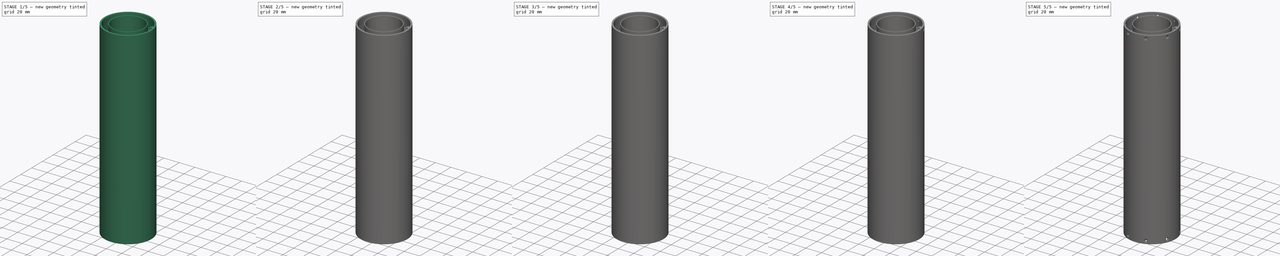
[diagram: build sequence overview — one tinted view per stage of 5, left to right]
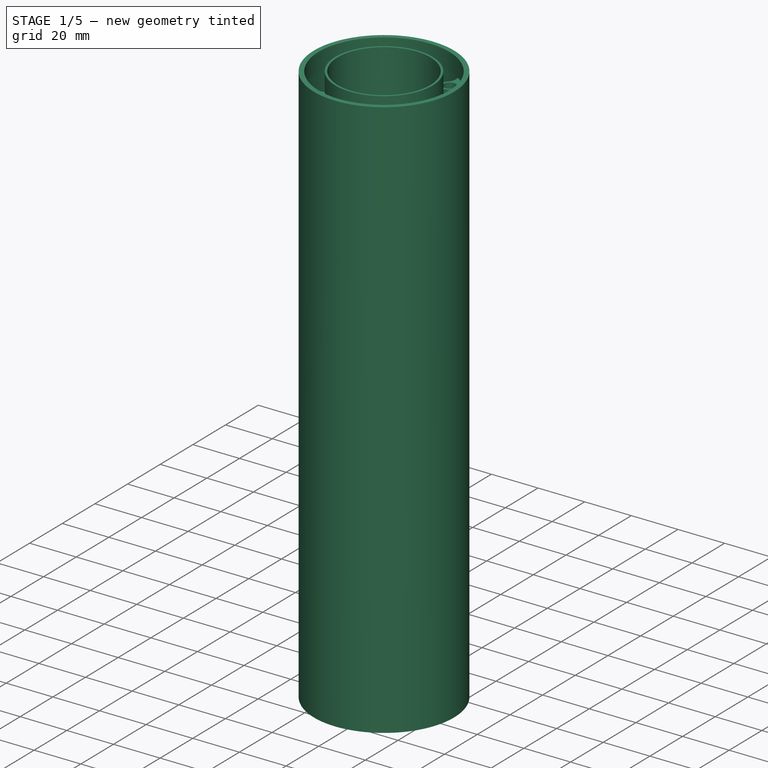
[diagram: stage 1 of 5 — iso view after this stage's code; geometry added in this stage tinted green]
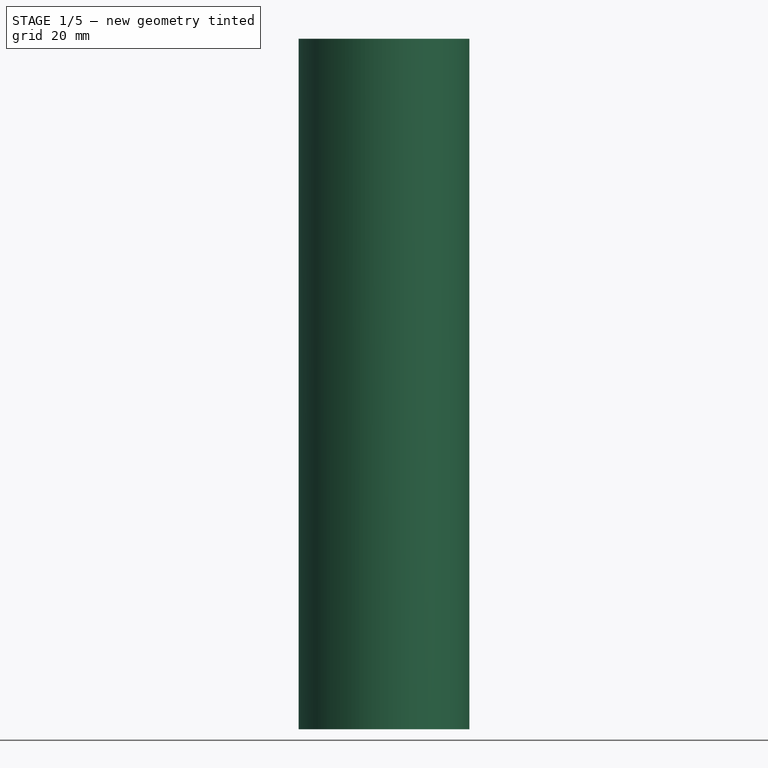
[diagram: stage 1 of 5 — front view after this stage's code; geometry added in this stage tinted green]
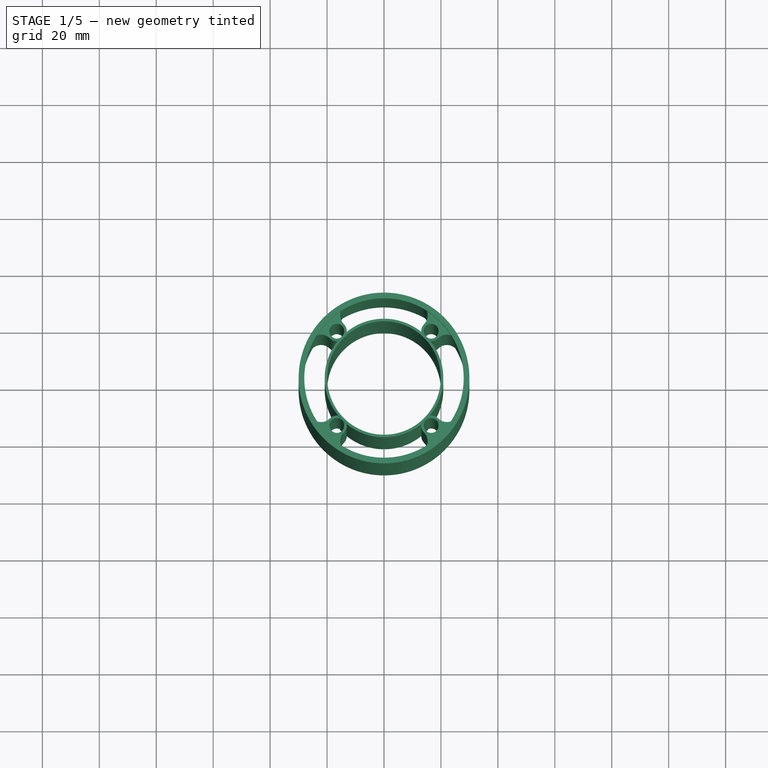
[diagram: stage 1 of 5 — top view after this stage's code; geometry added in this stage tinted green]
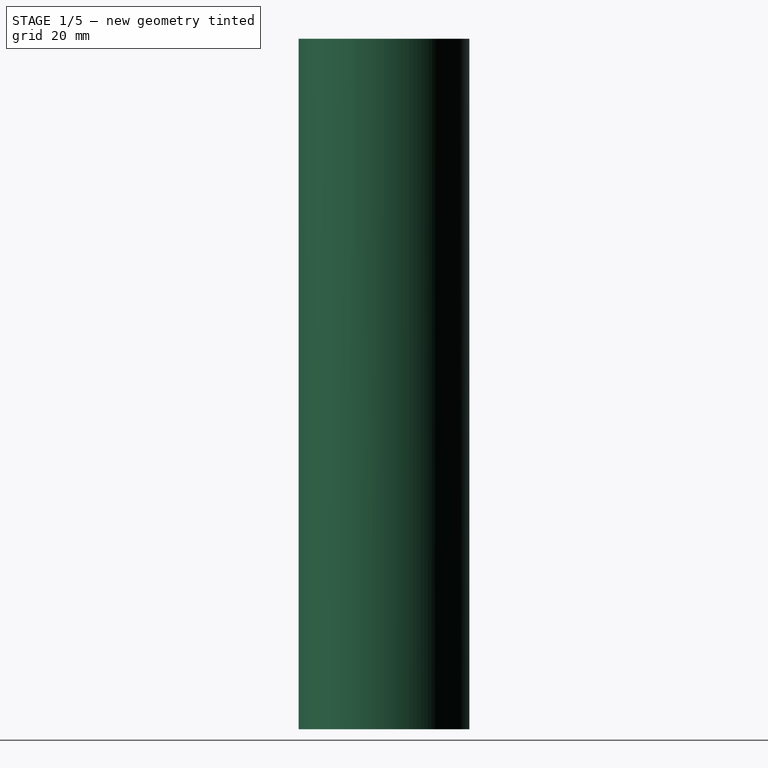
[diagram: stage 1 of 5 — right view after this stage's code; geometry added in this stage tinted green]
FCSTD DOCUMENT  (FreeCAD 1.0R39319 (Git))
Label: parachute_fuselage_seat
License: All rights reserved
objects: Sketcher::SketchObject×16, PartDesign::Pad×8, PartDesign::Pocket×6, PartDesign::PolarPattern×5, PartDesign::Plane×5, PartDesign::Chamfer×3, PartDesign::Fillet×2, PartDesign::Body×1
note: 105 computed .brp shape members not serialized (recipe doc carries the construction recipe); baked Part::Feature solids carry a one-line shape summary decoded from their .brp

FEATURE [Sketcher::SketchObject] Sketch
  ArcFitTolerance = 1e-06
  AttachmentSupport = -> [XY_Plane]
  FullyConstrained = true
  MakeInternals = false
  MapMode = 5
  sketch-geometry (2):
    g0: Circle CenterX=0 CenterY=0 CenterZ=0 NormalX=0 NormalY=0 NormalZ=1 AngleXU=0 Radius=30
    g1: Circle CenterX=0 CenterY=0 CenterZ=0 NormalX=0 NormalY=0 NormalZ=1 AngleXU=0 Radius=29
  constraints (4):
    c: Diameter(g0) = 60
    c: Coincident(g0,g-1)
    c: Diameter(g1) = 58
    c: Coincident(g1,g0)
FEATURE [PartDesign::Pad] Pad  label="fusoliera"
  Direction = (0,0,1)
  Length = 235
  Length2 = 10
  Profile = -> Sketch
  ReferenceAxis = -> Sketch [N_Axis]
  Refine = true
  Suppressed = false
  Type = 0
FEATURE [Sketcher::SketchObject] Sketch001
  ArcFitTolerance = 1e-06
  AttachmentSupport = -> [Pad]
  ExternalGeometry = -> [Pad]
  FullyConstrained = false
  MakeInternals = false
  MapMode = 5
  Placement = pos=(0,0,235) rot=(0,0,1;0rad)
  sketch-geometry (12):
    g0: LineSegment [constr] StartX=0 StartY=0 StartZ=0 EndX=16.566 EndY=16.566 EndZ=0
    g1: Circle CenterX=16.566 CenterY=16.566 CenterZ=0 NormalX=0 NormalY=0 NormalZ=1 AngleXU=0 Radius=2.6
    g2: ArcOfCircle CenterX=16.566 CenterY=16.566 CenterZ=0 NormalX=0 NormalY=0 NormalZ=1 AngleXU=0 Radius=3.5 StartAngle=2.35619 EndAngle=5.49779
    g3: ArcOfCircle CenterX=11.0464 CenterY=22.0856 CenterZ=0 NormalX=0 NormalY=0 NormalZ=1 AngleXU=0 Radius=4.3059 StartAngle=5.49779 EndAngle=7.3902
    g4: ArcOfCircle CenterX=22.0856 CenterY=11.0464 CenterZ=0 NormalX=0 NormalY=0 NormalZ=1 AngleXU=0 Radius=4.3059 StartAngle=0.463778 EndAngle=2.35619
    g5: LineSegment [constr] StartX=17.0518 StartY=12.102 StartZ=0 EndX=22.8488 EndY=17.899 EndZ=0
    g6: LineSegment [constr] StartX=11.605 StartY=16.5548 StartZ=0 EndX=18.5935 EndY=23.5432 EndZ=0
    g7: LineSegment StartX=12.9726 StartY=25.9367 StartZ=0 EndX=13.2467 EndY=26.4349 EndZ=0
    g8: LineSegment StartX=13.2467 StartY=26.4349 StartZ=0 EndX=19.3371 EndY=22.2749 EndZ=0
    g9: LineSegment StartX=19.3371 StartY=22.2749 StartZ=0 EndX=22.1303 EndY=19.4817 EndZ=0
    g10: LineSegment StartX=22.1303 StartY=19.4817 StartZ=0 EndX=26.2762 EndY=13.5853 EndZ=0
    g11: LineSegment StartX=26.2762 StartY=13.5853 StartZ=0 EndX=25.9367 EndY=12.9726 EndZ=0
  constraints (24):
    c: Distance(g0) = 23.4279
    c: Angle(g-1,g0) = 0.785398
    c: Coincident(g0,g-1)
    c: Diameter(g1) = 5.2
    c: Coincident(g1,g0)
    c: Diameter(g2) = 7
    c: Coincident(g2,g0)
    c: PointOnObject(g6,g-4)
    c: Parallel(g0,g6)
    c: Parallel(g5,g0)
    c: Tangent(g5,g2)
    c: Tangent(g3,g6)
    c: Tangent(g4,g5)
    c: Tangent(g3,g-3) = -1.5708
    c: Tangent(g3,g2) = 1.5708
    c: Tangent(g4,g-3) = -1.5708
    c: Tangent(g2,g4) = 1.5708
    c: Tangent(g2,g6) = 1.5708
    c: Coincident(g3,g7)
    c: Coincident(g7,g8)
    c: Coincident(g8,g9)
    c: Coincident(g9,g10)
    c: Coincident(g10,g11)
    c: Coincident(g11,g4)
FEATURE [PartDesign::Pad] Pad001  label="sede_tondi"
  BaseFeature = -> Pad
  Direction = (0,0,1)
  Length = 209
  Length2 = 10
  Profile = -> Sketch001
  ReferenceAxis = -> Sketch001 [N_Axis]
  Refine = true
  Reversed = true
  Suppressed = false
  Type = 0
FEATURE [PartDesign::PolarPattern] PolarPattern
  Angle = 360
  Axis = -> Z_Axis
  BaseFeature = -> Pad001
  Mode = 0
  Occurrences = 4
  Offset = 120
  Refine = true
  Suppressed = false
  TransformMode = 1
FEATURE [Sketcher::SketchObject] Sketch002
  ArcFitTolerance = 1e-06
  AttachmentSupport = -> [PolarPattern]
  ExternalGeometry = -> [PolarPattern]
  FullyConstrained = true
  MakeInternals = false
  MapMode = 5
  Placement = pos=(0,0,0) rot=(1,0,0;3.14159rad)
  sketch-geometry (2):
    g0: Circle CenterX=0 CenterY=0 CenterZ=0 NormalX=0 NormalY=0 NormalZ=1 AngleXU=0 Radius=20.8279
    g1: Circle CenterX=0 CenterY=0 CenterZ=0 NormalX=0 NormalY=0 NormalZ=1 AngleXU=0 Radius=19.9279
  constraints (4):
    c: Coincident(g0,g-1)
    c: Tangent(g0,g-8)
    c: Coincident(g1,g0)
    c: Tangent(g1,g-4)
FEATURE [PartDesign::Pad] Pad002  label="tubo_interno_paracadute"
  BaseFeature = -> PolarPattern
  Direction = (0,0,-1)
  Length = 242.5
  Length2 = 10
  Profile = -> Sketch002
  ReferenceAxis = -> Sketch002 [N_Axis]
  Refine = true
  Reversed = true
  Suppressed = false
  Type = 0
FEATURE [Sketcher::SketchObject] Sketch003
  ArcFitTolerance = 1e-06
  AttachmentSupport = -> [Pad002]
  ExternalGeometry = -> [Pad002]
  FullyConstrained = true
  MakeInternals = false
  MapMode = 5
  Placement = pos=(0,0,235) rot=(0,0,1;0rad)
  sketch-geometry (2):
    g0: Circle CenterX=0 CenterY=0 CenterZ=0 NormalX=0 NormalY=0 NormalZ=1 AngleXU=0 Radius=30
    g1: Circle CenterX=0 CenterY=0 CenterZ=0 NormalX=0 NormalY=0 NormalZ=1 AngleXU=0 Radius=28
  constraints (4):
    c: Diameter(g0) = 60
    c: Coincident(g0,g-1)
    c: Diameter(g1) = 56
    c: Coincident(g1,g0)
FEATURE [PartDesign::Pad] Pad003  label="accopiamento_inf"
  BaseFeature = -> Pad002
  Direction = (0,0,1)
  Length = 7.5
  Length2 = 10
  Profile = -> Sketch003
  ReferenceAxis = -> Sketch003 [N_Axis]
  Refine = true
  Suppressed = false
  Type = 0
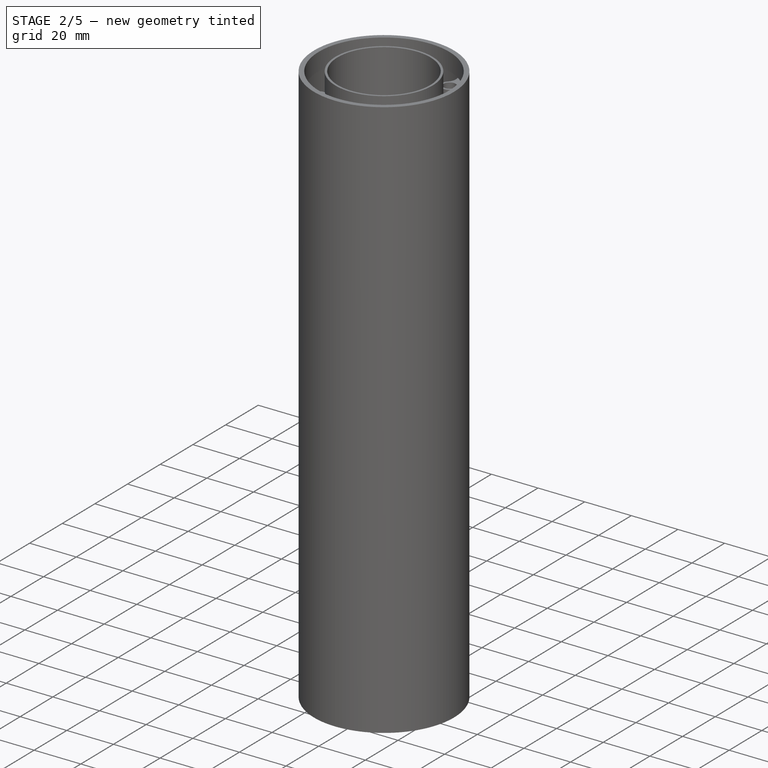
[diagram: stage 2 of 5 — iso view after this stage's code; geometry added in this stage tinted green]
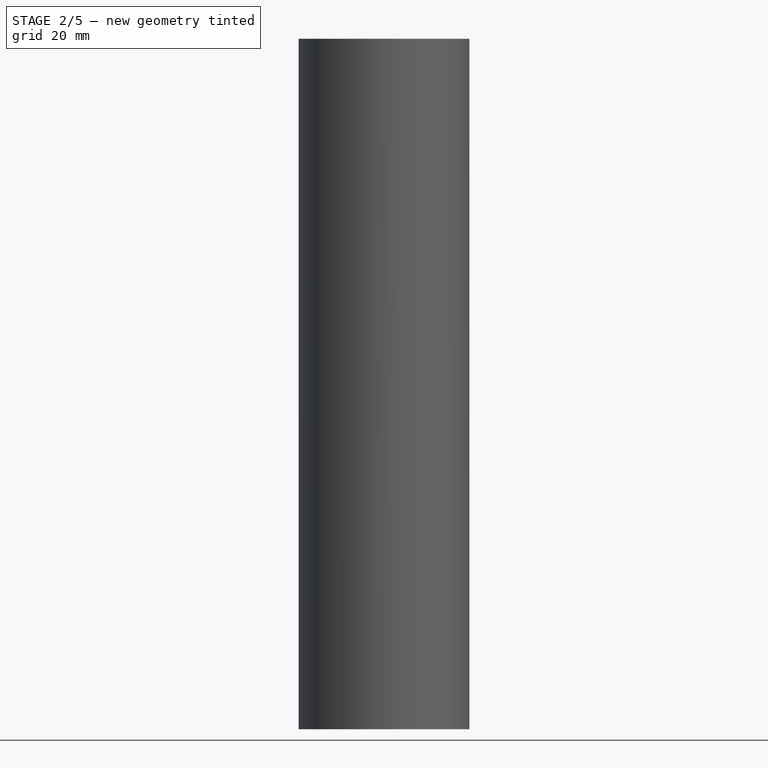
[diagram: stage 2 of 5 — front view after this stage's code; geometry added in this stage tinted green]
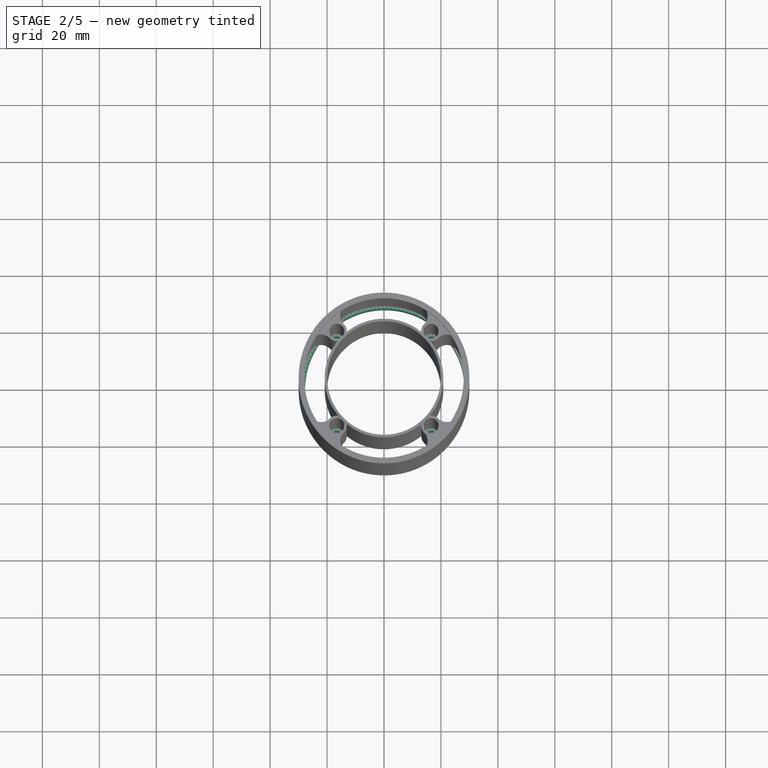
[diagram: stage 2 of 5 — top view after this stage's code; geometry added in this stage tinted green]
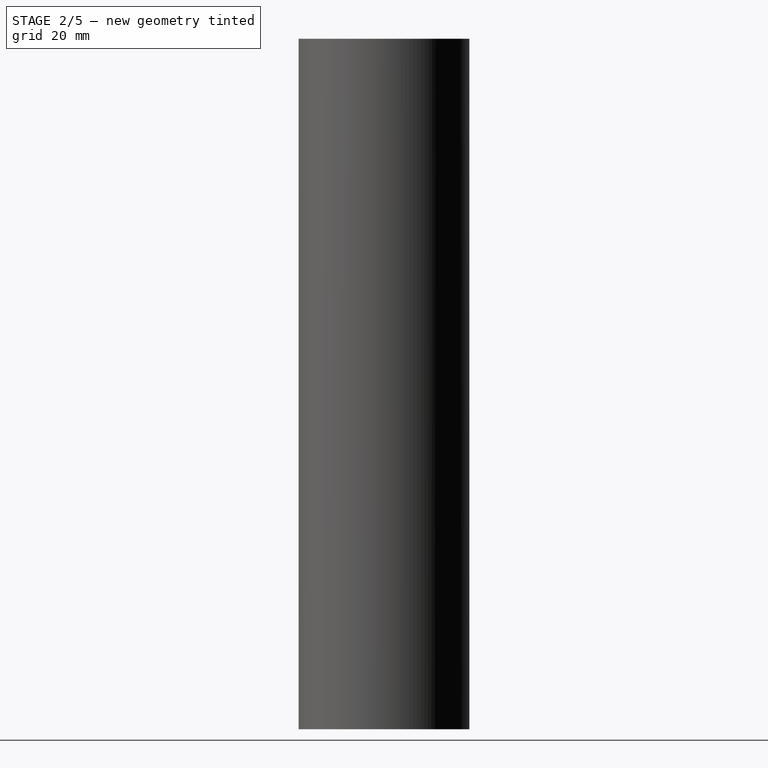
[diagram: stage 2 of 5 — right view after this stage's code; geometry added in this stage tinted green]
FEATURE [Sketcher::SketchObject] Sketch004
  ArcFitTolerance = 1e-06
  AttachmentSupport = -> [Pad003]
  ExternalGeometry = -> [Pad003]
  FullyConstrained = true
  MakeInternals = false
  MapMode = 5
  Placement = pos=(0,0,26) rot=(1,0,0;3.14159rad)
  sketch-geometry (1):
    g0: Circle CenterX=-16.566 CenterY=16.566 CenterZ=0 NormalX=0 NormalY=0 NormalZ=1 AngleXU=0 Radius=2.6
  constraints (2):
    c: Coincident(g0,g-3)
    c: Equal(g0,g-3)
FEATURE [PartDesign::Pad] Pad004  label="chiusura_tondi_1"
  BaseFeature = -> Pad003
  Direction = (0,0,-1)
  Length = 5
  Length2 = 10
  Profile = -> Sketch004
  ReferenceAxis = -> Sketch004 [N_Axis]
  Refine = true
  Reversed = true
  Suppressed = false
  Type = 0
FEATURE [Sketcher::SketchObject] Sketch005
  ArcFitTolerance = 1e-06
  AttachmentSupport = -> [Pad004]
  ExternalGeometry = -> [Pad004]
  FullyConstrained = true
  MakeInternals = false
  MapMode = 5
  Placement = pos=(0,0,31) rot=(0,0,1;0rad)
  sketch-geometry (1):
    g0: Circle CenterX=-16.566 CenterY=-16.566 CenterZ=0 NormalX=0 NormalY=0 NormalZ=1 AngleXU=0 Radius=1.45
  constraints (2):
    c: Diameter(g0) = 2.9
    c: Coincident(g0,g-3)
FEATURE [PartDesign::Pad] Pad005  label="chiusura_tondi_2"
  BaseFeature = -> Pad004
  Direction = (0,0,1)
  Length = 10
  Length2 = 10
  Profile = -> Sketch005
  ReferenceAxis = -> Sketch005 [N_Axis]
  Refine = true
  Suppressed = false
  Type = 0
FEATURE [PartDesign::Fillet] Fillet
  Base = -> Pad005 [Edge147]
  BaseFeature = -> Pad005
  Radius = 1
  Refine = true
  SupportTransform = false
  Suppressed = false
  UseAllEdges = false
FEATURE [PartDesign::PolarPattern] PolarPattern001
  Angle = 360
  Axis = -> Z_Axis
  BaseFeature = -> Fillet
  Mode = 0
  Occurrences = 4
  Offset = 120
  Originals = -> [Pad004,Pad005,Fillet]
  Refine = true
  Suppressed = false
  TransformMode = 0
FEATURE [Sketcher::SketchObject] Sketch006
  ArcFitTolerance = 1e-06
  AttachmentSupport = -> [PolarPattern001]
  ExternalGeometry = -> [PolarPattern001]
  FullyConstrained = false
  MakeInternals = false
  MapMode = 5
  Placement = pos=(-6.45e-14,7.02e-14,26) rot=(1,0,0;3.14159rad)
  sketch-geometry (2):
    g0: Circle CenterX=0 CenterY=0 CenterZ=0 NormalX=0 NormalY=0 NormalZ=1 AngleXU=0 Radius=29
    g1: Circle CenterX=0.288227 CenterY=0 CenterZ=0 NormalX=0 NormalY=0 NormalZ=1 AngleXU=0 Radius=28
  constraints (4):
    c: Coincident(g0,g-1)
    c: Tangent(g0,g-3)
    c: Diameter(g1) = 56
    c: PointOnObject(g1,g-1)
FEATURE [PartDesign::Pad] Pad006
  BaseFeature = -> PolarPattern001
  Direction = (2.5e-15,-2.7e-15,-1)
  Length = 26
  Length2 = 10
  Profile = -> Sketch006
  ReferenceAxis = -> Sketch006 [N_Axis]
  Refine = true
  Suppressed = false
  Type = 0
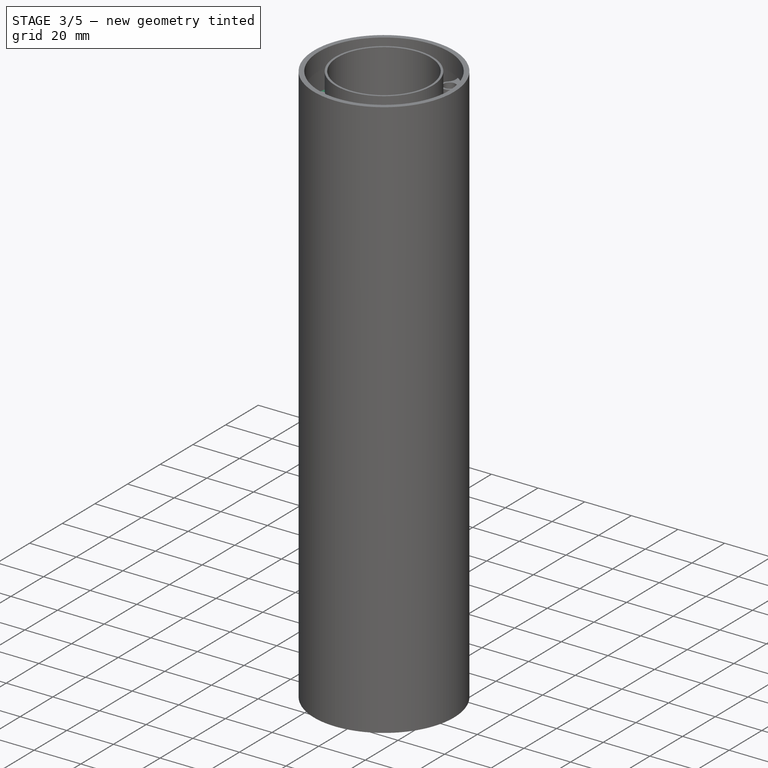
[diagram: stage 3 of 5 — iso view after this stage's code; geometry added in this stage tinted green]
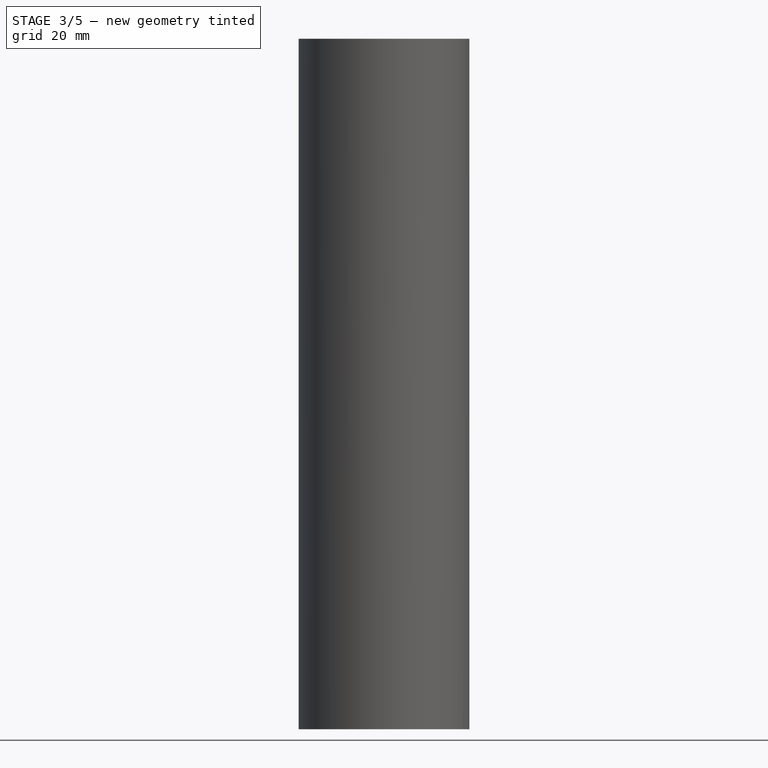
[diagram: stage 3 of 5 — front view after this stage's code; geometry added in this stage tinted green]
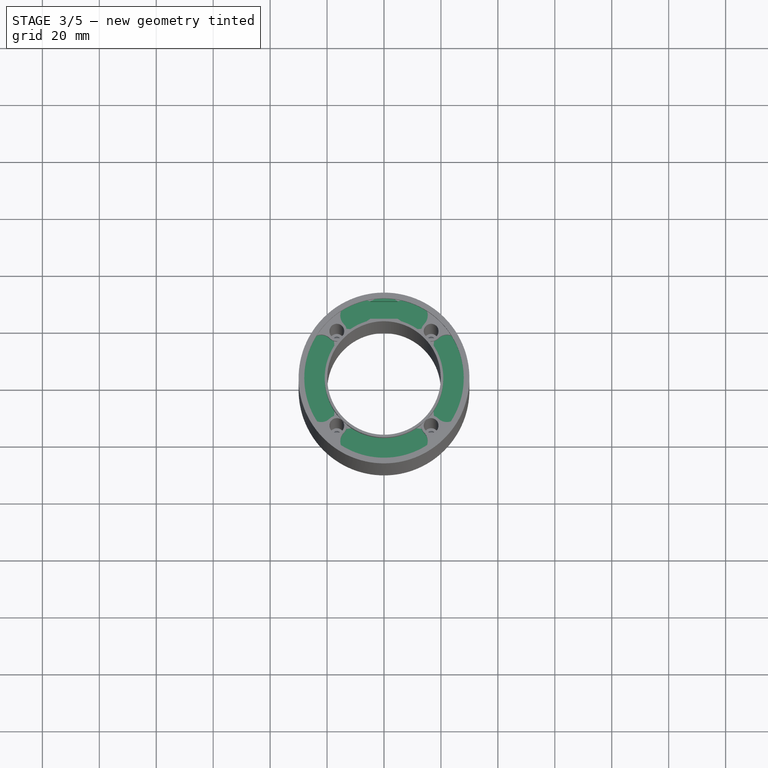
[diagram: stage 3 of 5 — top view after this stage's code; geometry added in this stage tinted green]
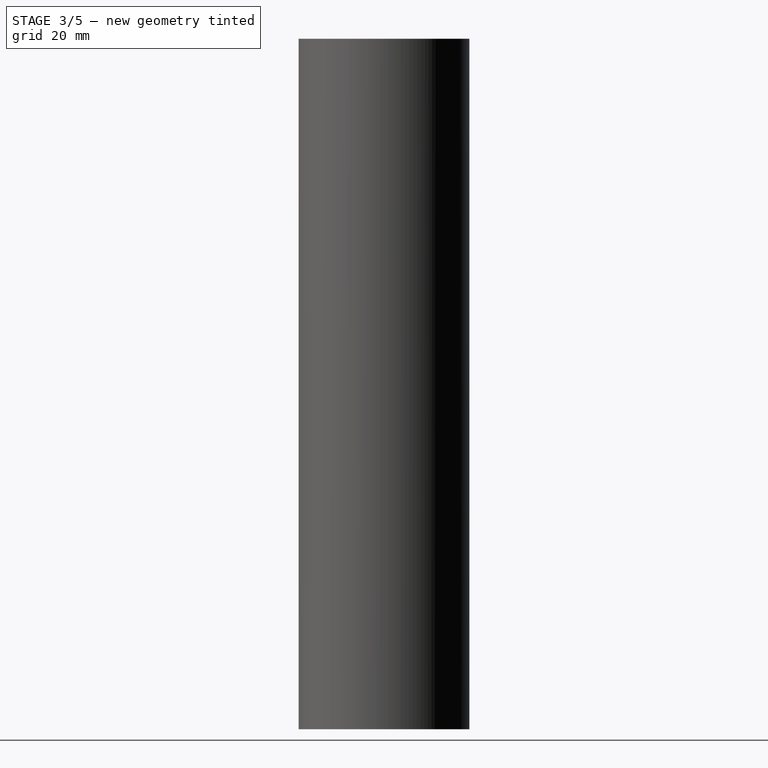
[diagram: stage 3 of 5 — right view after this stage's code; geometry added in this stage tinted green]
FEATURE [PartDesign::Plane] DatumPlane
  AttachmentOffset = pos=(0,0,-9) rot=(0,0,1;0rad)
  AttachmentSupport = -> [Pad006]
  Length = 72
  MapMode = 5
  Placement = pos=(0,0,226) rot=(0,0,1;0rad)
  ResizeMode = 0
  Width = 72
FEATURE [Sketcher::SketchObject] Sketch007
  ArcFitTolerance = 1e-06
  AttachmentSupport = -> [DatumPlane]
  ExternalGeometry = -> [Pad006]
  FullyConstrained = false
  MakeInternals = false
  MapMode = 5
  Placement = pos=(0,0,226) rot=(0,0,1;0rad)
  sketch-geometry (6):
    g0: ArcOfCircle CenterX=0 CenterY=0 CenterZ=0 NormalX=0 NormalY=0 NormalZ=1 AngleXU=0 Radius=20.8279 StartAngle=0.811358 EndAngle=2.31576
    g1: ArcOfCircle CenterX=0 CenterY=0 CenterZ=0 NormalX=0 NormalY=0 NormalZ=1 AngleXU=0 Radius=29 StartAngle=0.960739 EndAngle=2.1868
    g2: LineSegment StartX=-14.1202 StartY=15.3109 StartZ=0 EndX=-13.4361 EndY=17.2001 EndZ=0
    g3: LineSegment StartX=-13.4361 StartY=17.2001 StartZ=0 EndX=-16.7555 EndY=23.6697 EndZ=0
    g4: LineSegment StartX=14.3403 StartY=15.1049 StartZ=0 EndX=13.7756 EndY=16.9423 EndZ=0
    g5: LineSegment StartX=13.7756 StartY=16.9423 StartZ=0 EndX=16.6145 EndY=23.7688 EndZ=0
  constraints (10):
    c: Coincident(g0,g-1)
    c: Coincident(g1,g0)
    c: Coincident(g2,g3)
    c: Coincident(g4,g5)
    c: Coincident(g1,g3)
    c: Coincident(g1,g5)
    c: Coincident(g0,g2)
    c: Coincident(g0,g4)
    c: Tangent(g1,g-5)
    c: Tangent(g0,g-3)
FEATURE [PartDesign::Pad] Pad007
  BaseFeature = -> Pad006
  Direction = (0,0,1)
  Length = 16
  Length2 = 10
  Profile = -> Sketch007
  ReferenceAxis = -> Sketch007 [N_Axis]
  Refine = true
  Reversed = true
  Suppressed = false
  Type = 0
FEATURE [PartDesign::PolarPattern] PolarPattern002
  Angle = 360
  Axis = -> Sketch007 [N_Axis]
  BaseFeature = -> Pad007
  Mode = 0
  Occurrences = 4
  Offset = 120
  Originals = -> [Pad007]
  Refine = true
  Suppressed = false
  TransformMode = 0
FEATURE [PartDesign::Chamfer] Chamfer
  Angle = 45
  Base = -> PolarPattern002 [Edge182,Edge187,Edge192,Edge177]
  BaseFeature = -> PolarPattern002
  ChamferType = 0
  FlipDirection = false
  Refine = true
  Size = 8
  Size2 = 1
  SupportTransform = false
  Suppressed = false
  UseAllEdges = false
FEATURE [Sketcher::SketchObject] Sketch008
  ArcFitTolerance = 1e-06
  AttachmentSupport = -> [Chamfer]
  ExternalGeometry = -> [Chamfer]
  FullyConstrained = false
  MakeInternals = false
  MapMode = 5
  Placement = pos=(0,0,226) rot=(0,0,1;0rad)
  sketch-geometry (8):
    g0: LineSegment StartX=-4.8 StartY=27.2389 StartZ=0 EndX=-4.8 EndY=21.0889 EndZ=0
    g1: LineSegment StartX=-4.8 StartY=21.0889 StartZ=0 EndX=4.8 EndY=21.0889 EndZ=0
    g2: LineSegment StartX=4.8 StartY=21.0889 StartZ=0 EndX=4.8 EndY=27.2389 EndZ=0
    g3: LineSegment StartX=4.8 StartY=27.2389 StartZ=0 EndX=-4.8 EndY=27.2389 EndZ=0
    g4: LineSegment [constr] StartX=-6.27476 StartY=28 StartZ=0 EndX=10.4499 EndY=28 EndZ=0
    g5: LineSegment [constr] StartX=-7.28096 StartY=20.8279 StartZ=0 EndX=11.0665 EndY=20.8279 EndZ=0
    g6: LineSegment [constr] StartX=-7.28096 StartY=27.5 StartZ=0 EndX=10.5167 EndY=27.5 EndZ=0
    g7: LineSegment [constr] StartX=-6.09718 StartY=24.1639 StartZ=0 EndX=7.21244 EndY=24.1639 EndZ=0
  constraints (17):
    c: Coincident(g0,g1)
    c: Coincident(g1,g2)
    c: Coincident(g2,g3)
    c: Coincident(g3,g0)
    c: Vertical(g0)
    c: DistanceY(g0,g0) = 6.15
    c: DistanceX(g0,g1) = 9.6
    c: Symmetric(g0,g1,g-2)
    c: Horizontal(g4)
    c: Horizontal(g5)
    c: Tangent(g4,g-3)
    c: Tangent(g5,g-4)
    c: Horizontal(g6)
    c: DistanceY(g6,g4) = 0.5
    c: Symmetric(g6,g5,g7)
    c: Symmetric(g0,g0,g7)
    c: Symmetric(g0,g2,g-2)
FEATURE [PartDesign::Pocket] Pocket  label="sede_presa_elettrica"
  BaseFeature = -> Chamfer
  Direction = (0,0,-1)
  Length = 12.6
  Length2 = 5
  Profile = -> Sketch008
  ReferenceAxis = -> Sketch008 [N_Axis]
  Refine = true
  Suppressed = false
  Type = 0
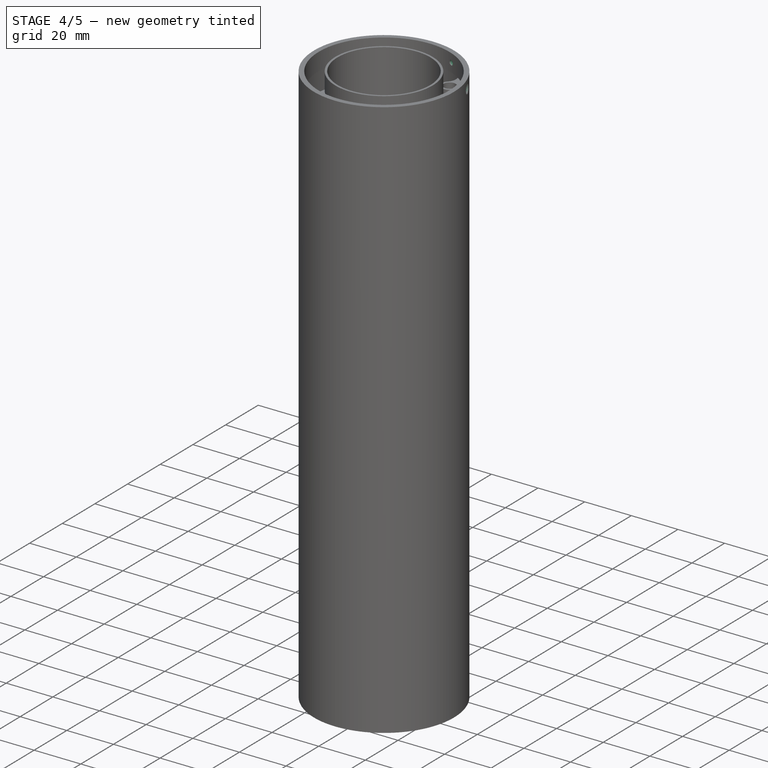
[diagram: stage 4 of 5 — iso view after this stage's code; geometry added in this stage tinted green]
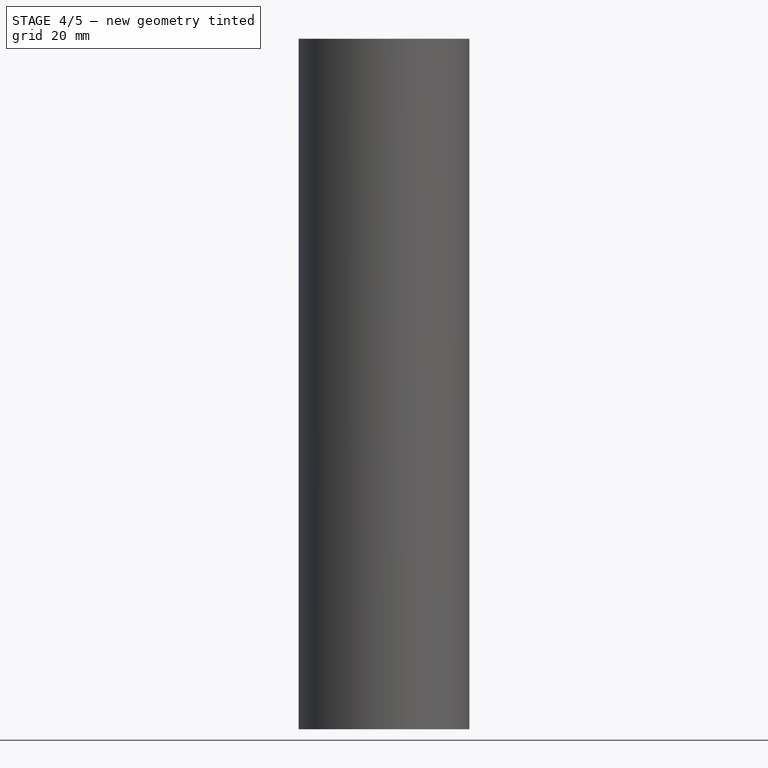
[diagram: stage 4 of 5 — front view after this stage's code; geometry added in this stage tinted green]
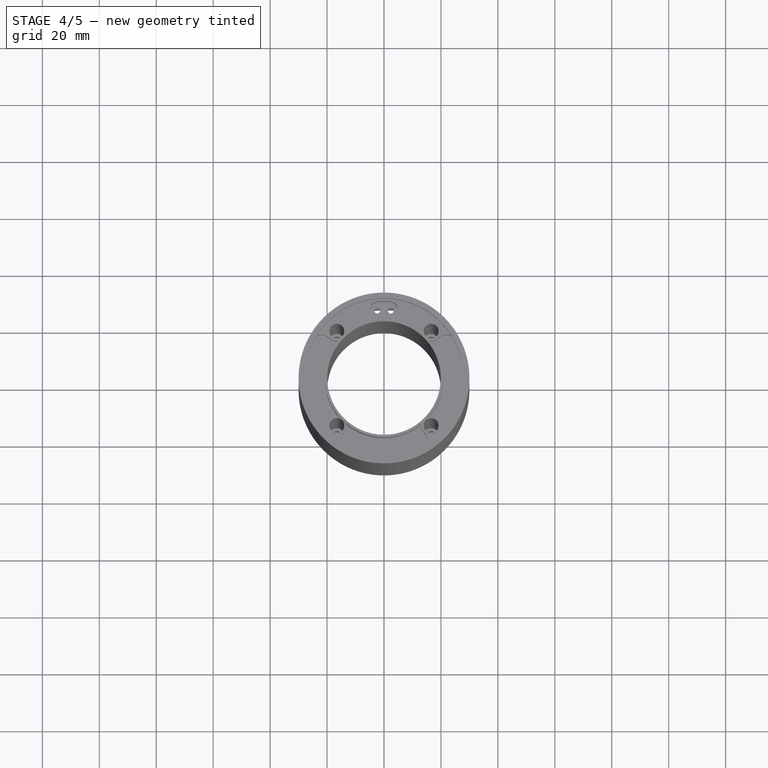
[diagram: stage 4 of 5 — top view after this stage's code; geometry added in this stage tinted green]
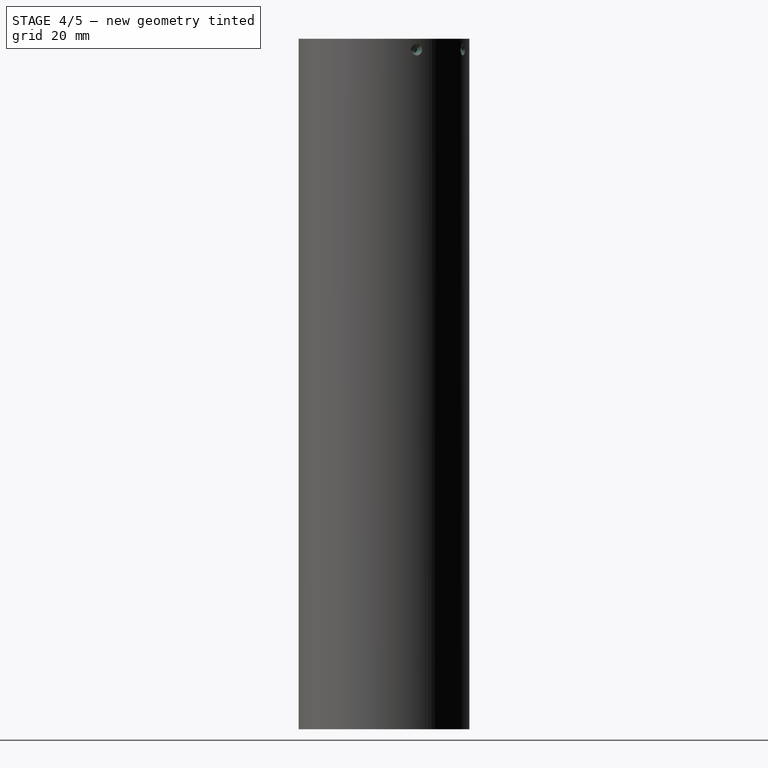
[diagram: stage 4 of 5 — right view after this stage's code; geometry added in this stage tinted green]
FEATURE [PartDesign::Fillet] Fillet001
  Base = -> Pocket [Edge262,Edge267,Edge265,Edge263]
  BaseFeature = -> Pocket
  Radius = 3
  Refine = true
  SupportTransform = false
  Suppressed = false
  UseAllEdges = false
FEATURE [Sketcher::SketchObject] Sketch009
  ArcFitTolerance = 1e-06
  AttachmentSupport = -> [Fillet001]
  ExternalGeometry = -> [Fillet001]
  FullyConstrained = false
  MakeInternals = false
  MapMode = 5
  Placement = pos=(0,0,213.4) rot=(0,0,1;0rad)
  sketch-geometry (3):
    g0: LineSegment [constr] StartX=-2.4 StartY=24.1404 StartZ=0 EndX=2.4 EndY=24.1404 EndZ=0
    g1: Circle CenterX=-2.4 CenterY=24.1404 CenterZ=0 NormalX=0 NormalY=0 NormalZ=1 AngleXU=0 Radius=1
    g2: Circle CenterX=2.4 CenterY=24.1404 CenterZ=0 NormalX=0 NormalY=0 NormalZ=1 AngleXU=0 Radius=1
  constraints (6):
    c: Symmetric(g0,g0,g-2)
    c: DistanceX(g0,g-1) = 2.4
    c: Diameter(g1) = 2
    c: Coincident(g1,g0)
    c: Diameter(g2) = 2
    c: Coincident(g2,g0)
FEATURE [PartDesign::Pocket] Pocket001
  BaseFeature = -> Fillet001
  Direction = (0,0,-1)
  Length = 5
  Length2 = 5
  Profile = -> Sketch009
  ReferenceAxis = -> Sketch009 [N_Axis]
  Refine = true
  Suppressed = false
  Type = 1
FEATURE [Sketcher::SketchObject] Sketch010
  ArcFitTolerance = 1e-06
  AttachmentSupport = -> [Pocket001]
  ExternalGeometry = -> [Pocket001]
  FullyConstrained = true
  MakeInternals = false
  MapMode = 5
  Placement = pos=(0,0,242.5) rot=(0,0,1;0rad)
  sketch-geometry (3):
    g0: LineSegment [constr] StartX=0 StartY=0 StartZ=0 EndX=21.2132 EndY=21.2132 EndZ=0
    g1: LineSegment StartX=0 StartY=0 StartZ=0 EndX=27.7164 EndY=11.4805 EndZ=0
    g2: LineSegment StartX=0 StartY=0 StartZ=0 EndX=11.4805 EndY=27.7164 EndZ=0
  constraints (9):
    c: Coincident(g0,g-1)
    c: PointOnObject(g0,g-3)
    c: Coincident(g1,g0)
    c: PointOnObject(g1,g-3)
    c: Coincident(g2,g0)
    c: PointOnObject(g2,g-3)
    c: Angle(g1,g2) = 0.785398
    c: Angle(g-1,g0) = 0.785398
    c: Angle(g0,g2) = 0.392699
FEATURE [PartDesign::Plane] DatumPlane001
  AttachmentSupport = -> [Sketch010]
  Length = 107.356
  MapMode = 7
  Placement = pos=(11.4805,27.7164,242.5) rot=(0.962637,-0.19148,-0.19148;1.60887rad)
  ResizeMode = 0
  Width = 296.462
FEATURE [PartDesign::Plane] DatumPlane002
  AttachmentSupport = -> [Sketch010]
  Length = 107.356
  MapMode = 7
  Placement = pos=(27.7164,11.4805,242.5) rot=(0.726831,-0.485653,-0.485653;1.88458rad)
  ResizeMode = 0
  Width = 296.462
FEATURE [Sketcher::SketchObject] Sketch011
  ArcFitTolerance = 1e-06
  AttachmentSupport = -> [DatumPlane001]
  FullyConstrained = true
  MakeInternals = false
  MapMode = 5
  Placement = pos=(11.4805,27.7164,242.5) rot=(0.962637,-0.19148,-0.19148;1.60887rad)
  sketch-geometry (1):
    g0: Circle CenterX=0 CenterY=-3.75 CenterZ=0 NormalX=0 NormalY=0 NormalZ=1 AngleXU=0 Radius=1.05
  constraints (3):
    c: Diameter(g0) = 2.1
    c: PointOnObject(g0,g-2)
    c: DistanceY(g0,g-1) = 3.75
FEATURE [Sketcher::SketchObject] Sketch012
  ArcFitTolerance = 1e-06
  AttachmentSupport = -> [DatumPlane002]
  FullyConstrained = true
  MakeInternals = false
  MapMode = 5
  Placement = pos=(27.7164,11.4805,242.5) rot=(0.726831,-0.485653,-0.485653;1.88458rad)
  sketch-geometry (1):
    g0: Circle CenterX=0 CenterY=-3.75 CenterZ=0 NormalX=0 NormalY=0 NormalZ=1 AngleXU=0 Radius=1.05
  constraints (3):
    c: Diameter(g0) = 2.1
    c: PointOnObject(g0,g-2)
    c: DistanceY(g0,g-1) = 3.75
FEATURE [PartDesign::Pocket] Pocket002  label="sede_viti_inf_1"
  BaseFeature = -> Pocket001
  Direction = (0.382683,0.92388,0)
  Length = 3
  Length2 = 5
  Profile = -> Sketch011
  ReferenceAxis = -> Sketch011 [N_Axis]
  Refine = true
  Reversed = true
  Suppressed = false
  Type = 0
FEATURE [PartDesign::Pocket] Pocket003  label="sede_viti_inf_2"
  BaseFeature = -> Pocket002
  Direction = (0.92388,0.382683,1e-16)
  Length = 3
  Length2 = 5
  Profile = -> Sketch012
  ReferenceAxis = -> Sketch012 [N_Axis]
  Refine = true
  Reversed = true
  Suppressed = false
  Type = 0
FEATURE [PartDesign::Chamfer] Chamfer001
  Angle = 45
  Base = -> Pocket003 [Edge190,Edge186,Edge185,Edge187,Edge189,Edge191]
  BaseFeature = -> Pocket003
  ChamferType = 0
  FlipDirection = false
  Refine = true
  Size = 1
  Size2 = 1
  SupportTransform = false
  Suppressed = false
  UseAllEdges = false
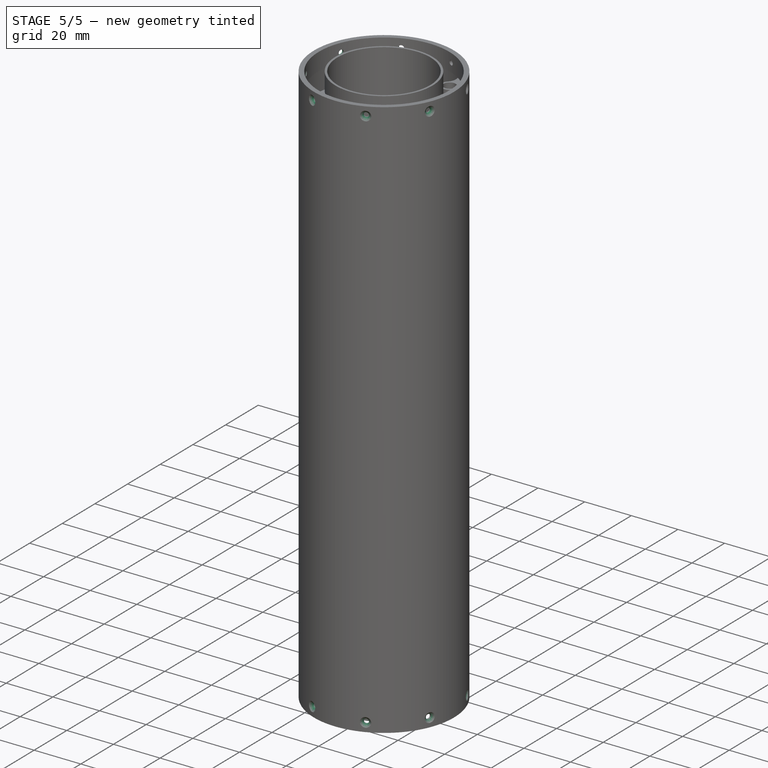
[diagram: stage 5 of 5 — iso view after this stage's code; geometry added in this stage tinted green]
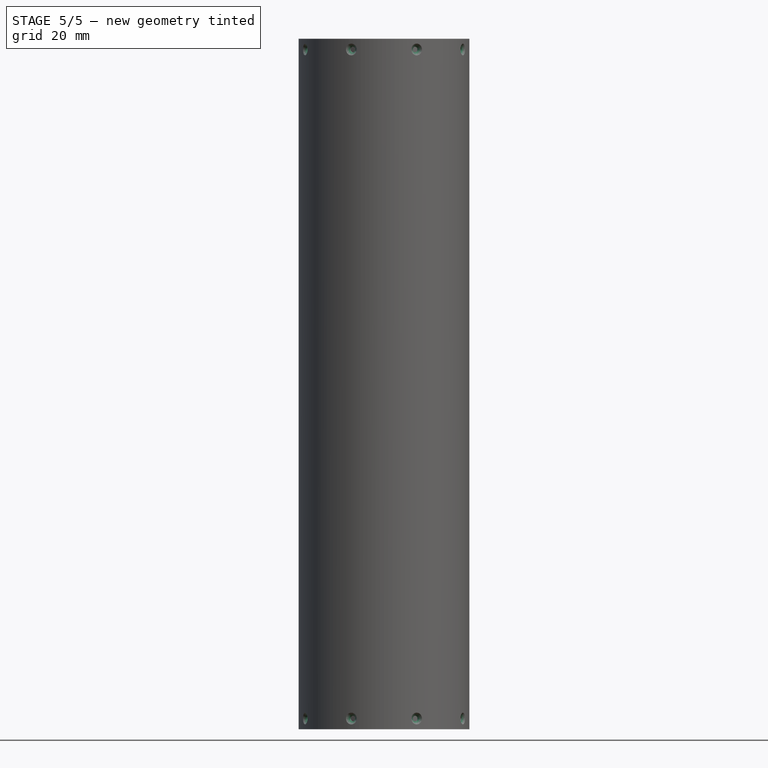
[diagram: stage 5 of 5 — front view after this stage's code; geometry added in this stage tinted green]
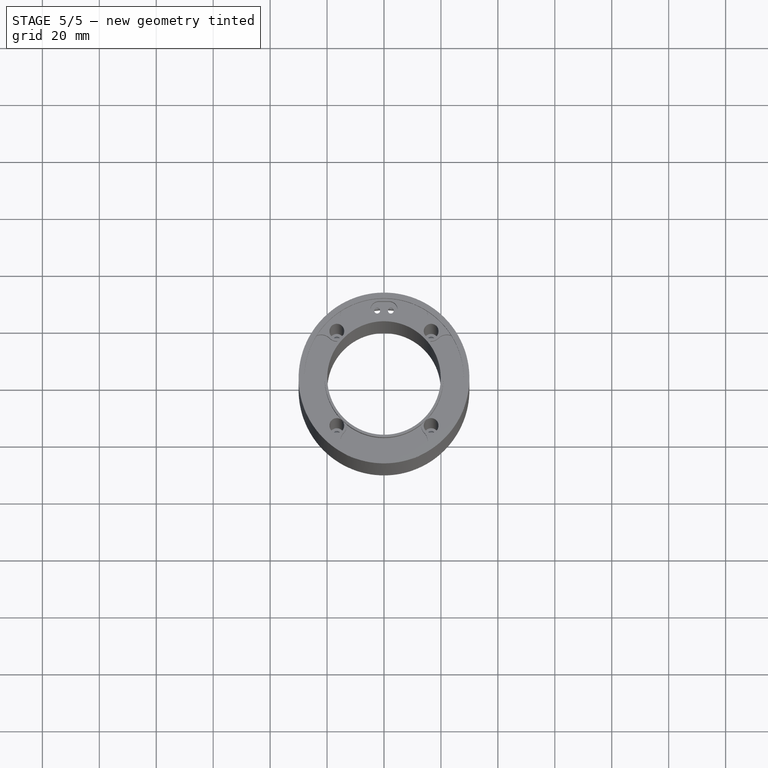
[diagram: stage 5 of 5 — top view after this stage's code; geometry added in this stage tinted green]
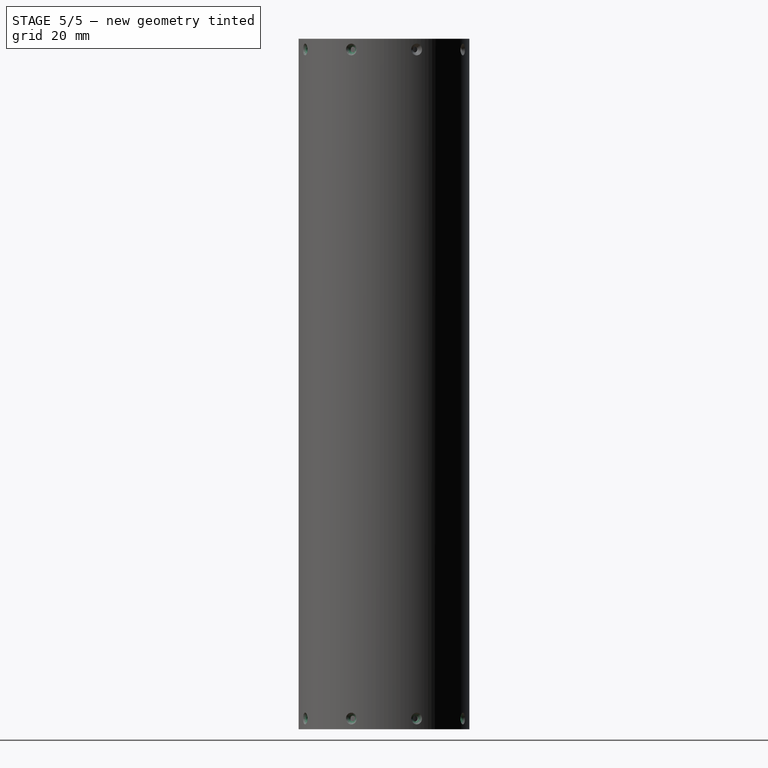
[diagram: stage 5 of 5 — right view after this stage's code; geometry added in this stage tinted green]
FEATURE [PartDesign::PolarPattern] PolarPattern003
  Angle = 360
  Axis = -> Z_Axis
  BaseFeature = -> Chamfer001
  Mode = 0
  Occurrences = 4
  Offset = 120
  Originals = -> [Pocket002,Pocket003,Chamfer001]
  Refine = true
  Suppressed = false
  TransformMode = 0
FEATURE [Sketcher::SketchObject] Sketch013
  ArcFitTolerance = 1e-06
  AttachmentSupport = -> [Pad006]
  ExternalGeometry = -> [Pad006]
  FullyConstrained = true
  MakeInternals = false
  MapMode = 5
  Placement = pos=(0,0,0) rot=(1,0,0;3.14159rad)
  sketch-geometry (3):
    g0: LineSegment [constr] StartX=0 StartY=0 StartZ=0 EndX=21.2132 EndY=21.2132 EndZ=0
    g1: LineSegment StartX=0 StartY=0 StartZ=0 EndX=27.7164 EndY=11.4805 EndZ=0
    g2: LineSegment StartX=0 StartY=0 StartZ=0 EndX=11.4805 EndY=27.7164 EndZ=0
  constraints (9):
    c: Coincident(g0,g-1)
    c: PointOnObject(g0,g-3)
    c: Coincident(g1,g0)
    c: PointOnObject(g1,g-3)
    c: Coincident(g2,g0)
    c: PointOnObject(g2,g-3)
    c: Angle(g-1,g0) = 0.785398
    c: Angle(g1,g2) = 0.785398
    c: Angle(g0,g2) = 0.392699
FEATURE [PartDesign::Plane] DatumPlane003
  AttachmentSupport = -> [Sketch013]
  Length = 107.356
  MapMode = 7
  Placement = pos=(11.4805,-27.7164,0) rot=(-0.139281,0.700215,0.700215;3.41838rad)
  ResizeMode = 0
  Width = 296.462
FEATURE [PartDesign::Plane] DatumPlane004
  AttachmentSupport = -> [Sketch013]
  Length = 107.356
  MapMode = 7
  Placement = pos=(27.7164,-11.4805,0) rot=(-0.427192,0.639338,0.639338;3.94904rad)
  ResizeMode = 0
  Width = 296.462
FEATURE [Sketcher::SketchObject] Sketch014
  ArcFitTolerance = 1e-06
  AttachmentSupport = -> [DatumPlane003]
  FullyConstrained = true
  MakeInternals = false
  MapMode = 5
  Placement = pos=(11.4805,-27.7164,0) rot=(-0.139281,0.700215,0.700215;3.41838rad)
  sketch-geometry (1):
    g0: Circle CenterX=0 CenterY=3.75 CenterZ=0 NormalX=0 NormalY=0 NormalZ=1 AngleXU=0 Radius=1.05
  constraints (3):
    c: Diameter(g0) = 2.1
    c: PointOnObject(g0,g-2)
    c: Distance(g0,g-1) = 3.75
FEATURE [Sketcher::SketchObject] Sketch015  label="sede_viti_sup_2"
  ArcFitTolerance = 1e-06
  AttachmentSupport = -> [DatumPlane004]
  FullyConstrained = true
  MakeInternals = false
  MapMode = 5
  Placement = pos=(27.7164,-11.4805,0) rot=(-0.427192,0.639338,0.639338;3.94904rad)
  sketch-geometry (1):
    g0: Circle CenterX=0 CenterY=3.75 CenterZ=0 NormalX=0 NormalY=0 NormalZ=1 AngleXU=0 Radius=1.05
  constraints (3):
    c: Diameter(g0) = 2.1
    c: PointOnObject(g0,g-2)
    c: Distance(g0,g-1) = 3.75
FEATURE [PartDesign::Pocket] Pocket004  label="sede_viti_sup_1"
  BaseFeature = -> PolarPattern003
  Direction = (0.382683,-0.92388,0)
  Length = 4
  Length2 = 5
  Profile = -> Sketch014
  ReferenceAxis = -> Sketch014 [N_Axis]
  Refine = true
  Reversed = true
  Suppressed = false
  Type = 0
FEATURE [PartDesign::Pocket] Pocket005
  BaseFeature = -> Pocket004
  Direction = (0.92388,-0.382683,-1e-16)
  Length = 4
  Length2 = 5
  Profile = -> Sketch015
  ReferenceAxis = -> Sketch015 [N_Axis]
  Refine = true
  Reversed = true
  Suppressed = false
  Type = 0
FEATURE [PartDesign::Chamfer] Chamfer002
  Angle = 45
  Base = -> Pocket005 [Edge37,Edge38,Edge39,Edge40,Edge42,Edge41]
  BaseFeature = -> Pocket005
  ChamferType = 0
  FlipDirection = false
  Refine = true
  Size = 1
  Size2 = 1
  SupportTransform = false
  Suppressed = false
  UseAllEdges = false
FEATURE [PartDesign::PolarPattern] PolarPattern004
  Angle = 360
  Axis = -> Z_Axis
  BaseFeature = -> Chamfer002
  Mode = 0
  Occurrences = 4
  Offset = 120
  Originals = -> [Pocket004,Pocket005,Chamfer002]
  Refine = true
  Suppressed = false
  TransformMode = 0
FEATURE [PartDesign::Body] Body
  AllowCompound = false
  Group = -> [Sketch,Pad,Sketch001,Pad001,PolarPattern,Sketch002,Pad002,Sketch003,Pad003,Sketch004,Pad004,Sketch005,Pad005,Fillet,PolarPattern001,Sketch006,Pad006,DatumPlane,Sketch007,Pad007,PolarPattern002,Chamfer,Sketch008,Pocket,Fillet001,Sketch009,Pocket001,Sketch010,DatumPlane001,DatumPlane002,Sketch011,Sketch012,Pocket002,Pocket003,Chamfer001,PolarPattern003,Sketch013,DatumPlane003,DatumPlane004,+6 more]
  Origin = -> Origin
  Tip = -> PolarPattern004
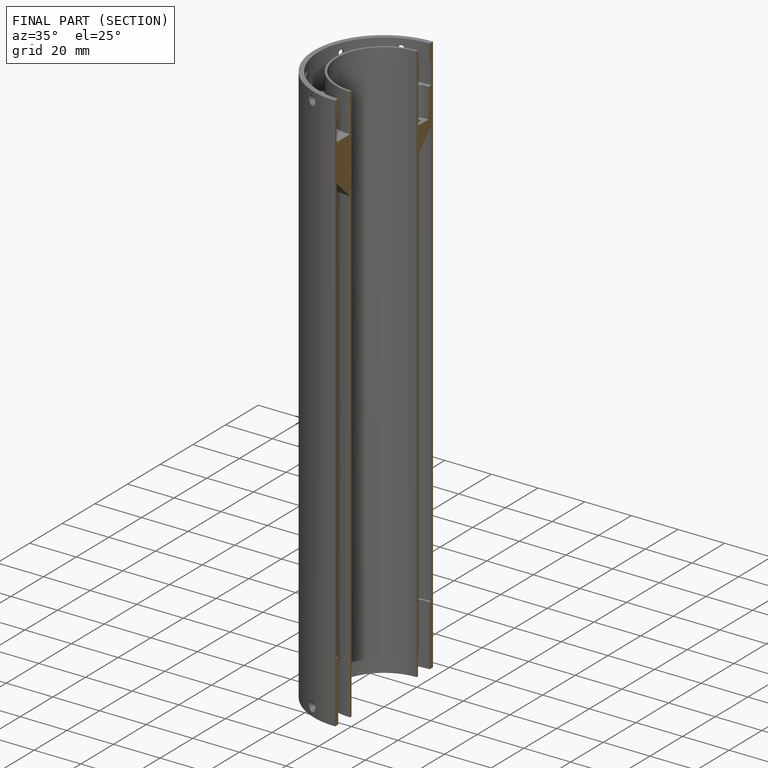
[diagram: finished part — half-section view (interior)]
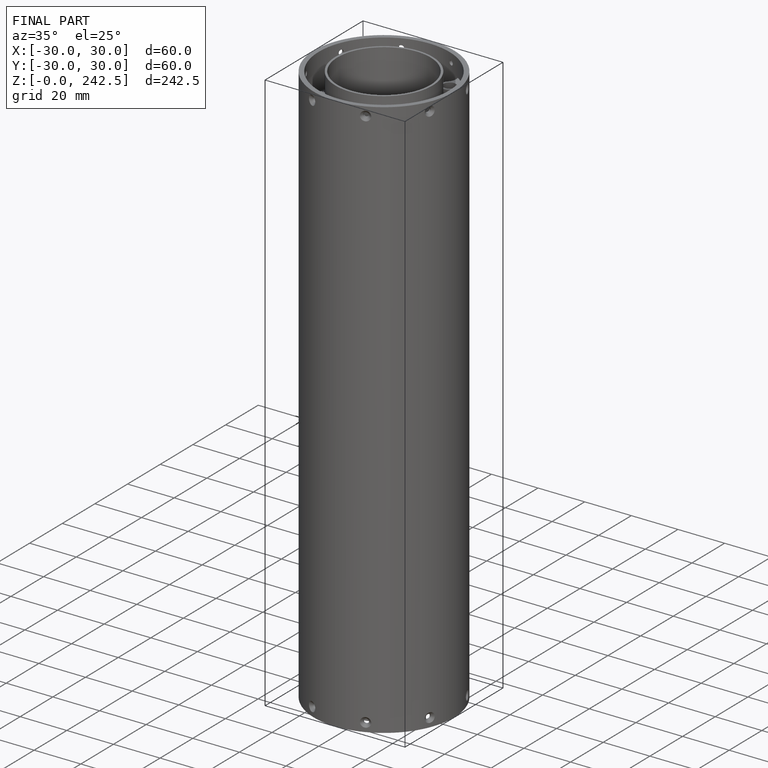
[diagram: finished part — iso view with bounding-box wireframe]
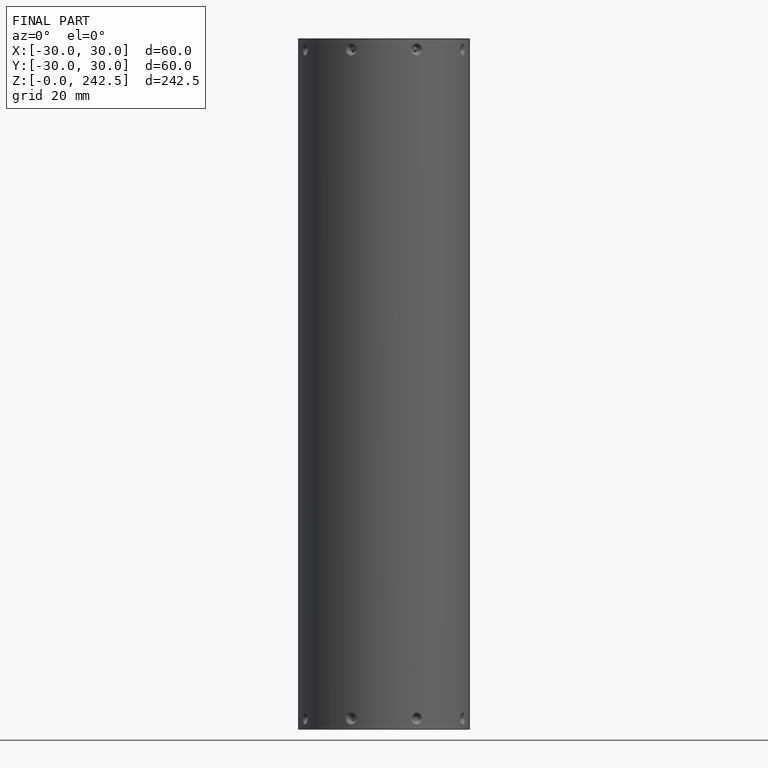
[diagram: finished part — front view with bounding-box wireframe]
